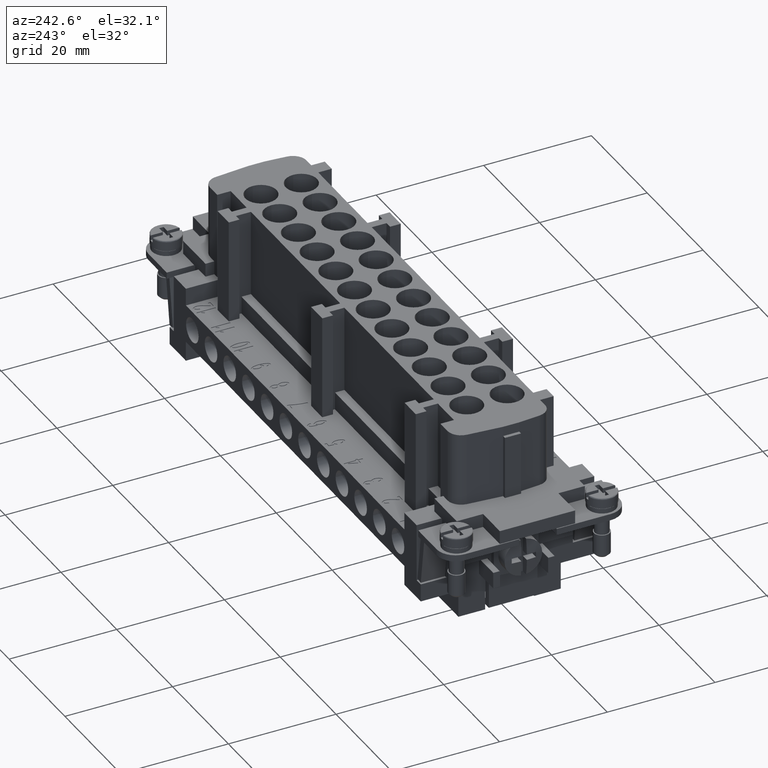
[diagram: clean part render]
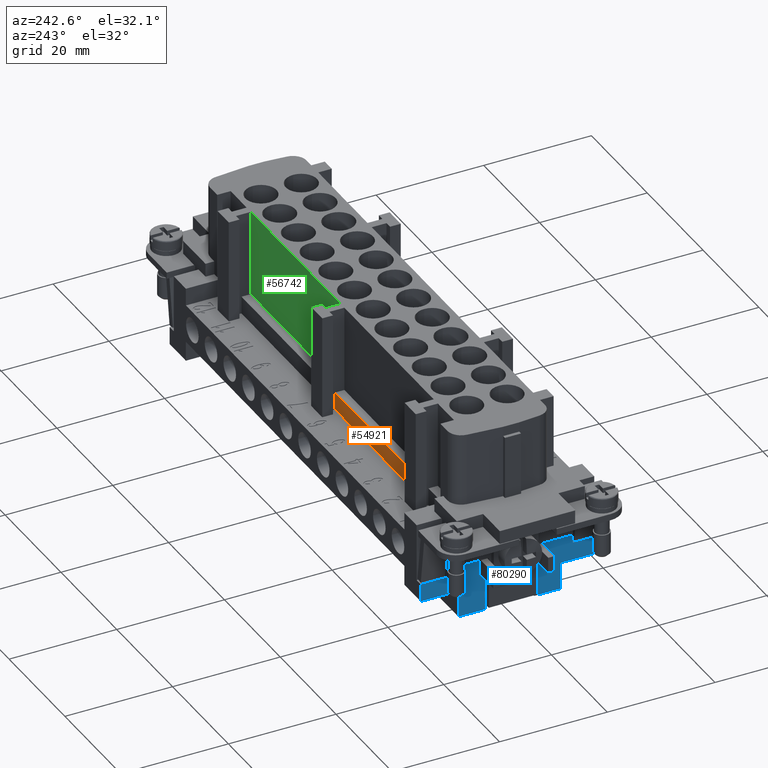
[diagram: same view with three faces highlighted in distinct colors, each labeled with its STEP entity id]
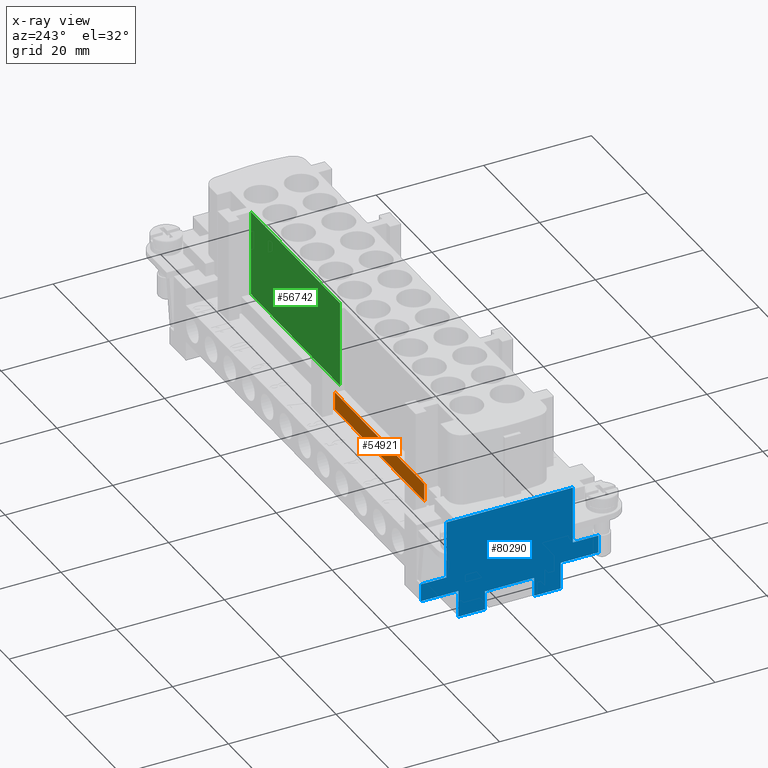
[diagram: x-ray of the same camera — body ghosted, the three highlighted faces saturated]
A machine part, auxiliary view with three faces highlighted in distinct colors.
The next image is the same camera in x-ray (body ghosted, the three faces saturated) — at least one of them is partly hidden behind the body in this view.
Their STEP definitions:

[orange] entity #54921 — the highlighted planar face has unit normal (0, 1, 0).
#46280=CARTESIAN_POINT('',(-32.750000000000000,9.499999999999989,15.750000000000000));
#46281=VERTEX_POINT('',#46280);
#46288=CARTESIAN_POINT('',(-0.749999999999997,9.500000000000000,15.750000000000000));
#46289=VERTEX_POINT('',#46288);
#46290=CARTESIAN_POINT('',(-0.749999999999997,9.500000000000000,15.750000000000000));
#46291=DIRECTION('',(-1.0,0.0,0.0));
#46292=VECTOR('',#46291,32.0);
#46293=LINE('',#46290,#46292);
#46294=EDGE_CURVE('',#46289,#46281,#46293,.T.);
#54292=CARTESIAN_POINT('',(-0.749999999999997,9.500000000000000,19.0));
#54293=VERTEX_POINT('',#54292);
#54294=CARTESIAN_POINT('',(-0.749999999999997,9.500000000000000,19.0));
#54295=DIRECTION('',(0.0,0.0,-1.0));
#54296=VECTOR('',#54295,3.250000000000000);
#54297=LINE('',#54294,#54296);
#54298=EDGE_CURVE('',#54293,#46289,#54297,.T.);
#54657=CARTESIAN_POINT('',(-32.750000000000000,9.499999999999989,19.0));
#54658=VERTEX_POINT('',#54657);
#54659=CARTESIAN_POINT('',(-32.750000000000000,9.499999999999989,15.750000000000000));
#54660=DIRECTION('',(0.0,0.0,1.0));
#54661=VECTOR('',#54660,3.250000000000000);
#54662=LINE('',#54659,#54661);
#54663=EDGE_CURVE('',#46281,#54658,#54662,.T.);
#54905=CARTESIAN_POINT('',(-39.149999999999999,9.499999999999986,0.0));
#54906=DIRECTION('',(0.0,1.0,0.0));
#54907=DIRECTION('',(0.0,0.0,1.0));
#54908=AXIS2_PLACEMENT_3D('',#54905,#54906,#54907);
#54909=PLANE('',#54908);
#54910=ORIENTED_EDGE('',*,*,#54298,.T.);
#54911=ORIENTED_EDGE('',*,*,#46294,.T.);
#54912=ORIENTED_EDGE('',*,*,#54663,.T.);
#54913=CARTESIAN_POINT('',(-32.750000000000000,9.499999999999989,19.0));
#54914=DIRECTION('',(1.0,0.0,0.0));
#54915=VECTOR('',#54914,32.0);
#54916=LINE('',#54913,#54915);
#54917=EDGE_CURVE('',#54658,#54293,#54916,.T.);
#54918=ORIENTED_EDGE('',*,*,#54917,.T.);
#54919=EDGE_LOOP('',(#54910,#54911,#54912,#54918));
#54920=FACE_OUTER_BOUND('',#54919,.T.);
#54921=ADVANCED_FACE('',(#54920),#54909,.T.);

[blue] entity #80290 — the highlighted planar face has unit normal (-1, 0, 0).
#56561=CARTESIAN_POINT('',(-45.0,11.750000000000000,19.0));
#56562=VERTEX_POINT('',#56561);
#56569=CARTESIAN_POINT('',(-45.0,-11.750000000000000,19.0));
#56570=VERTEX_POINT('',#56569);
#56571=CARTESIAN_POINT('',(-45.0,-11.750000000000000,19.0));
#56572=DIRECTION('',(0.0,1.0,0.0));
#56573=VECTOR('',#56572,23.500000000000000);
#56574=LINE('',#56571,#56573);
#56575=EDGE_CURVE('',#56570,#56562,#56574,.T.);
#62703=CARTESIAN_POINT('',(-45.0,11.750000000000000,8.300000000000001));
#62704=VERTEX_POINT('',#62703);
#62713=CARTESIAN_POINT('',(-45.0,11.750000000000000,19.0));
#62714=DIRECTION('',(0.0,0.0,-1.0));
#62715=VECTOR('',#62714,10.699999999999999);
#62716=LINE('',#62713,#62715);
#62717=EDGE_CURVE('',#56562,#62704,#62716,.T.);
#62759=CARTESIAN_POINT('',(-44.999999999999993,16.500000000000000,8.300000000000001));
#62760=VERTEX_POINT('',#62759);
#62761=CARTESIAN_POINT('',(-45.0,11.750000000000000,8.300000000000001));
#62762=DIRECTION('',(0.0,1.0,0.0));
#62763=VECTOR('',#62762,4.750000000000000);
#62764=LINE('',#62761,#62763);
#62765=EDGE_CURVE('',#62704,#62760,#62764,.T.);
#62975=CARTESIAN_POINT('',(-45.0,-11.750000000000000,8.300000000000003));
#62976=VERTEX_POINT('',#62975);
#62985=CARTESIAN_POINT('',(-45.0,-11.750000000000000,8.300000000000003));
#62986=DIRECTION('',(0.0,0.0,1.0));
#62987=VECTOR('',#62986,10.699999999999998);
#62988=LINE('',#62985,#62987);
#62989=EDGE_CURVE('',#62976,#56570,#62988,.T.);
#62999=CARTESIAN_POINT('',(-44.999999999999993,-16.500000000000000,8.300000000000003));
#63000=VERTEX_POINT('',#62999);
#63001=CARTESIAN_POINT('',(-44.999999999999993,-16.500000000000000,8.300000000000003));
#63002=DIRECTION('',(0.0,1.0,0.0));
#63003=VECTOR('',#63002,4.750000000000000);
#63004=LINE('',#63001,#63003);
#63005=EDGE_CURVE('',#63000,#62976,#63004,.T.);
#63073=CARTESIAN_POINT('',(-45.0,16.500000000000000,5.0));
#63074=VERTEX_POINT('',#63073);
#63081=CARTESIAN_POINT('',(-45.0,16.500000000000000,5.0));
#63082=DIRECTION('',(0.0,0.0,1.0));
#63083=VECTOR('',#63082,3.300000000000001);
#63084=LINE('',#63081,#63083);
#63085=EDGE_CURVE('',#63074,#62760,#63084,.T.);
#63251=CARTESIAN_POINT('',(-45.0,-16.500000000000000,5.0));
#63252=VERTEX_POINT('',#63251);
#63253=CARTESIAN_POINT('',(-45.0,-16.500000000000000,5.0));
#63254=DIRECTION('',(0.0,0.0,1.0));
#63255=VECTOR('',#63254,3.300000000000003);
#63256=LINE('',#63253,#63255);
#63257=EDGE_CURVE('',#63252,#63000,#63256,.T.);
#78556=CARTESIAN_POINT('',(-45.0,9.500000000000000,0.0));
#78557=VERTEX_POINT('',#78556);
#78564=CARTESIAN_POINT('',(-45.0,9.500000000000000,5.0));
#78565=VERTEX_POINT('',#78564);
#78566=CARTESIAN_POINT('',(-45.0,9.500000000000000,5.0));
#78567=DIRECTION('',(0.0,0.0,-1.0));
#78568=VECTOR('',#78567,5.0);
#78569=LINE('',#78566,#78568);
#78570=EDGE_CURVE('',#78565,#78557,#78569,.T.);
#78596=CARTESIAN_POINT('',(-45.0,-9.500000000000000,5.0));
#78597=VERTEX_POINT('',#78596);
#78604=CARTESIAN_POINT('',(-45.0,-9.500000000000000,0.0));
#78605=VERTEX_POINT('',#78604);
#78606=CARTESIAN_POINT('',(-45.0,-9.500000000000000,0.0));
#78607=DIRECTION('',(0.0,0.0,1.0));
#78608=VECTOR('',#78607,5.0);
#78609=LINE('',#78606,#78608);
#78610=EDGE_CURVE('',#78605,#78597,#78609,.T.);
#79415=CARTESIAN_POINT('',(-45.0,-9.500000000000000,5.0));
#79416=DIRECTION('',(0.0,-1.0,0.0));
#79417=VECTOR('',#79416,7.0);
#79418=LINE('',#79415,#79417);
#79419=EDGE_CURVE('',#78597,#63252,#79418,.T.);
#79471=CARTESIAN_POINT('',(-45.0,16.500000000000000,5.0));
#79472=DIRECTION('',(0.0,-1.0,0.0));
#79473=VECTOR('',#79472,7.0);
#79474=LINE('',#79471,#79473);
#79475=EDGE_CURVE('',#63074,#78565,#79474,.T.);
#79487=CARTESIAN_POINT('',(-45.0,-4.549999999999999,0.0));
#79488=VERTEX_POINT('',#79487);
#79489=CARTESIAN_POINT('',(-45.0,-9.500000000000000,0.0));
#79490=DIRECTION('',(0.0,1.0,0.0));
#79491=VECTOR('',#79490,4.950000000000001);
#79492=LINE('',#79489,#79491);
#79493=EDGE_CURVE('',#78605,#79488,#79492,.T.);
#79543=CARTESIAN_POINT('',(-45.0,4.549999999999999,0.0));
#79544=VERTEX_POINT('',#79543);
#79551=CARTESIAN_POINT('',(-45.0,4.549999999999999,0.0));
#79552=DIRECTION('',(0.0,1.0,0.0));
#79553=VECTOR('',#79552,4.950000000000001);
#79554=LINE('',#79551,#79553);
#79555=EDGE_CURVE('',#79544,#78557,#79554,.T.);
#79950=CARTESIAN_POINT('',(-45.0,4.549999999999999,3.500000000000000));
#79951=VERTEX_POINT('',#79950);
#79958=CARTESIAN_POINT('',(-45.0,4.549999999999999,0.0));
#79959=DIRECTION('',(0.0,0.0,1.0));
#79960=VECTOR('',#79959,3.500000000000000);
#79961=LINE('',#79958,#79960);
#79962=EDGE_CURVE('',#79544,#79951,#79961,.T.);
#79974=CARTESIAN_POINT('',(-45.0,-4.549999999999999,3.500000000000000));
#79975=VERTEX_POINT('',#79974);
#79984=CARTESIAN_POINT('',(-45.0,-4.549999999999999,3.500000000000000));
#79985=DIRECTION('',(0.0,0.0,-1.0));
#79986=VECTOR('',#79985,3.500000000000000);
#79987=LINE('',#79984,#79986);
#79988=EDGE_CURVE('',#79975,#79488,#79987,.T.);
#80000=CARTESIAN_POINT('',(-45.0,4.549999999999999,3.500000000000000));
#80001=DIRECTION('',(0.0,-1.0,0.0));
#80002=VECTOR('',#80001,9.099999999999998);
#80003=LINE('',#80000,#80002);
#80004=EDGE_CURVE('',#79951,#79975,#80003,.T.);
#80267=CARTESIAN_POINT('',(-45.0,-16.500000000000000,0.0));
#80268=DIRECTION('',(-1.0,0.0,0.0));
#80269=DIRECTION('',(0.0,0.0,1.0));
#80270=AXIS2_PLACEMENT_3D('',#80267,#80268,#80269);
#80271=PLANE('',#80270);
#80272=ORIENTED_EDGE('',*,*,#62765,.T.);
#80273=ORIENTED_EDGE('',*,*,#63085,.F.);
#80274=ORIENTED_EDGE('',*,*,#79475,.T.);
#80275=ORIENTED_EDGE('',*,*,#78570,.T.);
#80276=ORIENTED_EDGE('',*,*,#79555,.F.);
#80277=ORIENTED_EDGE('',*,*,#79962,.T.);
#80278=ORIENTED_EDGE('',*,*,#80004,.T.);
#80279=ORIENTED_EDGE('',*,*,#79988,.T.);
#80280=ORIENTED_EDGE('',*,*,#79493,.F.);
#80281=ORIENTED_EDGE('',*,*,#78610,.T.);
#80282=ORIENTED_EDGE('',*,*,#79419,.T.);
#80283=ORIENTED_EDGE('',*,*,#63257,.T.);
#80284=ORIENTED_EDGE('',*,*,#63005,.T.);
#80285=ORIENTED_EDGE('',*,*,#62989,.T.);
#80286=ORIENTED_EDGE('',*,*,#56575,.T.);
#80287=ORIENTED_EDGE('',*,*,#62717,.T.);
#80288=EDGE_LOOP('',(#80272,#80273,#80274,#80275,#80276,#80277,#80278,#80279,#80280,#80281,#80282,#80283,#80284,#80285,#80286,#80287));
#80289=FACE_OUTER_BOUND('',#80288,.T.);
#80290=ADVANCED_FACE('',(#80289),#80271,.T.);

[green] entity #56742 — the highlighted planar face has unit normal (0, 1, 0).
#53679=CARTESIAN_POINT('',(32.750000000000000,7.750000000000000,19.0));
#53680=VERTEX_POINT('',#53679);
#53687=CARTESIAN_POINT('',(32.750000000000000,7.750000000000000,35.0));
#53688=VERTEX_POINT('',#53687);
#53689=CARTESIAN_POINT('',(32.750000000000000,7.750000000000000,35.0));
#53690=DIRECTION('',(0.0,0.0,-1.0));
#53691=VECTOR('',#53690,16.0);
#53692=LINE('',#53689,#53691);
#53693=EDGE_CURVE('',#53688,#53680,#53692,.T.);
#54428=CARTESIAN_POINT('',(0.749999999999993,7.749999999999995,35.0));
#54429=VERTEX_POINT('',#54428);
#54436=CARTESIAN_POINT('',(0.749999999999993,7.749999999999995,19.0));
#54437=VERTEX_POINT('',#54436);
#54438=CARTESIAN_POINT('',(0.749999999999993,7.749999999999995,19.0));
#54439=DIRECTION('',(0.0,0.0,1.0));
#54440=VECTOR('',#54439,16.0);
#54441=LINE('',#54438,#54440);
#54442=EDGE_CURVE('',#54437,#54429,#54441,.T.);
#56721=CARTESIAN_POINT('',(0.749999999999993,7.749999999999995,19.0));
#56722=DIRECTION('',(0.0,1.0,0.0));
#56723=DIRECTION('',(0.0,0.0,1.0));
#56724=AXIS2_PLACEMENT_3D('',#56721,#56722,#56723);
#56725=PLANE('',#56724);
#56726=ORIENTED_EDGE('',*,*,#53693,.T.);
#56727=CARTESIAN_POINT('',(0.749999999999993,7.749999999999995,19.0));
#56728=DIRECTION('',(1.0,0.0,0.0));
#56729=VECTOR('',#56728,32.000000000000007);
#56730=LINE('',#56727,#56729);
#56731=EDGE_CURVE('',#54437,#53680,#56730,.T.);
#56732=ORIENTED_EDGE('',*,*,#56731,.F.);
#56733=ORIENTED_EDGE('',*,*,#54442,.T.);
#56734=CARTESIAN_POINT('',(0.749999999999993,7.749999999999995,35.0));
#56735=DIRECTION('',(1.0,0.0,0.0));
#56736=VECTOR('',#56735,32.000000000000007);
#56737=LINE('',#56734,#56736);
#56738=EDGE_CURVE('',#54429,#53688,#56737,.T.);
#56739=ORIENTED_EDGE('',*,*,#56738,.T.);
#56740=EDGE_LOOP('',(#56726,#56732,#56733,#56739));
#56741=FACE_OUTER_BOUND('',#56740,.T.);
#56742=ADVANCED_FACE('',(#56741),#56725,.T.);